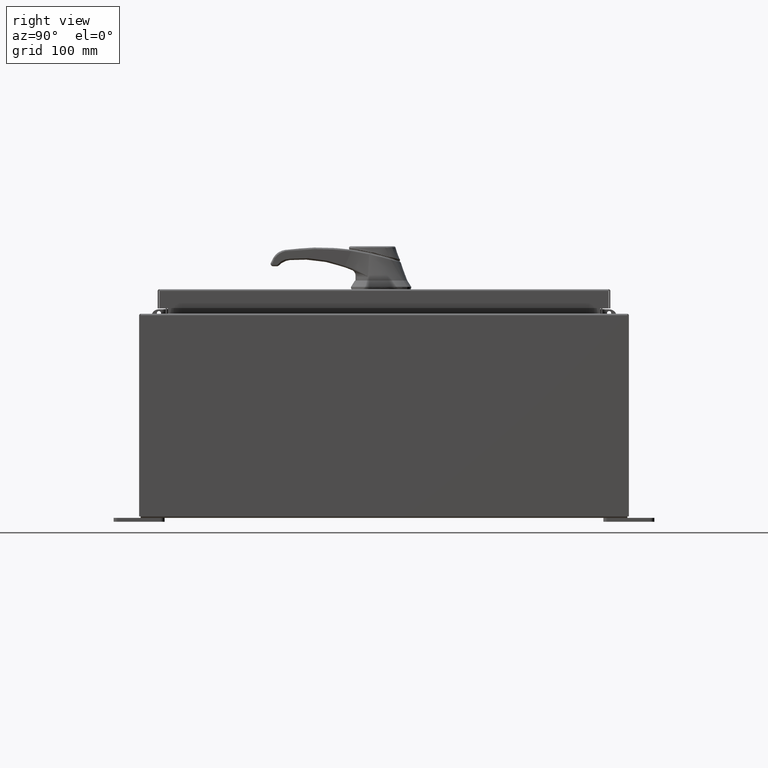
[diagram: clean part render]
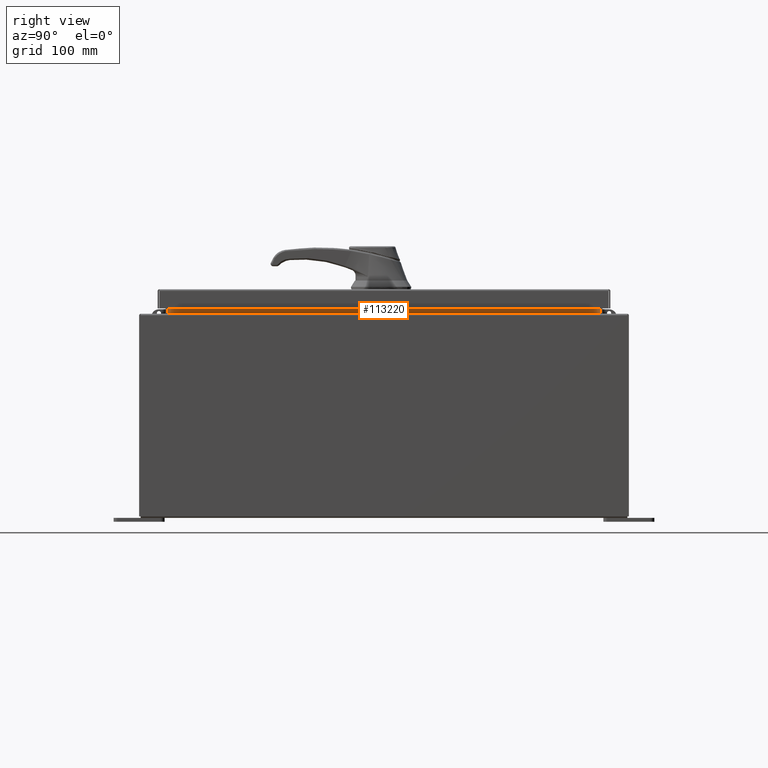
[diagram: same view with one face highlighted and labeled with its STEP entity id]
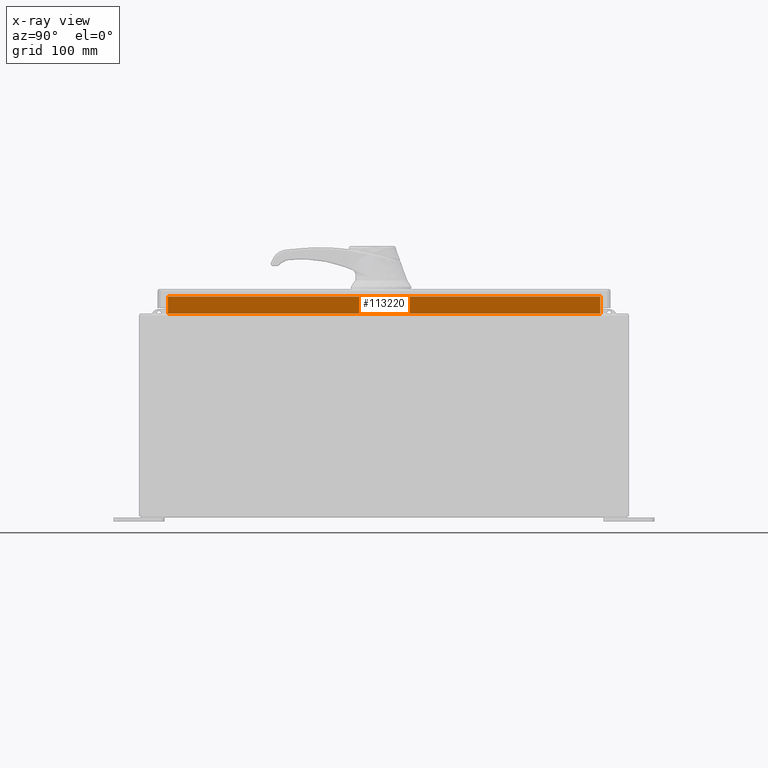
[diagram: x-ray of the same camera — body ghosted, the highlighted face saturated]
A machine part, right view. The second image highlights one B-rep face of the part: STEP entity #113220.
The next image is the same camera in x-ray: the body ghosted, the highlighted face saturated — about 0% of this face is hidden behind the body in this view.
In plain terms, the highlighted planar face has unit normal (1, 0, -0).
Its self-contained STEP definition (entity closure, byte-faithful):
#3698 = VERTEX_POINT ( 'NONE', #12234 ) ;
#3700 = ORIENTED_EDGE ( 'NONE', *, *, #12624, .F. ) ;
#4128 = VECTOR ( 'NONE', #104875, 39.37007874015748100 ) ;
#8401 = LINE ( 'NONE', #68117, #52131 ) ;
#9000 = VECTOR ( 'NONE', #89219, 39.37007874015748100 ) ;
#10972 = EDGE_CURVE ( 'NONE', #110777, #91698, #109243, .T. ) ;
#11629 = CARTESIAN_POINT ( 'NONE',  ( 8.699700000000035500, 10.59374999999999600, 10.76290000000001100 ) ) ;
#12234 = CARTESIAN_POINT ( 'NONE',  ( 8.699700000000035500, -10.59374999999999800, 9.938300000000008800 ) ) ;
#12624 = EDGE_CURVE ( 'NONE', #91698, #77690, #55484, .T. ) ;
#25186 = CARTESIAN_POINT ( 'NONE',  ( 8.699700000000035500, -10.59375000000000000, 10.76290000000001100 ) ) ;
#36706 = CARTESIAN_POINT ( 'NONE',  ( 8.699700000000035500, 10.59374999999999600, 9.925300000000008900 ) ) ;
#42653 = CARTESIAN_POINT ( 'NONE',  ( 8.699700000000035500, 10.59374999999999600, 9.938300000000008800 ) ) ;
#44146 = DIRECTION ( 'NONE',  ( -2.361913319930193300E-015, 0.0000000000000000000, -1.000000000000000000 ) ) ;
#47979 = ORIENTED_EDGE ( 'NONE', *, *, #63230, .F. ) ;
#50645 = LINE ( 'NONE', #96037, #4128 ) ;
#52131 = VECTOR ( 'NONE', #85780, 39.37007874015748100 ) ;
#54214 = EDGE_CURVE ( 'NONE', #77690, #3698, #50645, .T. ) ;
#55484 = LINE ( 'NONE', #36706, #9000 ) ;
#63230 = EDGE_CURVE ( 'NONE', #3698, #110777, #8401, .T. ) ;
#63929 = AXIS2_PLACEMENT_3D ( 'NONE', #69794, #96691, #44146 ) ;
#68117 = CARTESIAN_POINT ( 'NONE',  ( 8.699700000000037300, -10.59375000000000000, 10.85060000000001100 ) ) ;
#68753 = DIRECTION ( 'NONE',  ( 0.0000000000000000000, 1.000000000000000000, 0.0000000000000000000 ) ) ;
#69794 = CARTESIAN_POINT ( 'NONE',  ( 8.699700000000012400, 0.0000000000000000000, -2.054793730939673200E-014 ) ) ;
#70174 = PLANE ( 'NONE',  #63929 ) ;
#71410 = ORIENTED_EDGE ( 'NONE', *, *, #54214, .F. ) ;
#74265 = CARTESIAN_POINT ( 'NONE',  ( 8.699700000000037300, -10.59375000000000000, 10.76290000000001100 ) ) ;
#77690 = VERTEX_POINT ( 'NONE', #42653 ) ;
#78051 = EDGE_LOOP ( 'NONE', ( #3700, #112475, #47979, #71410 ) ) ;
#85780 = DIRECTION ( 'NONE',  ( 2.361913319930198800E-015, -0.0000000000000000000, 1.000000000000000000 ) ) ;
#89219 = DIRECTION ( 'NONE',  ( -2.361913319930193300E-015, -0.0000000000000000000, -1.000000000000000000 ) ) ;
#91698 = VERTEX_POINT ( 'NONE', #11629 ) ;
#96037 = CARTESIAN_POINT ( 'NONE',  ( 8.699700000000035500, 10.59374999999999600, 9.938300000000008800 ) ) ;
#96691 = DIRECTION ( 'NONE',  ( 1.000000000000000000, 0.0000000000000000000, -2.361913319930193300E-015 ) ) ;
#97831 = FACE_OUTER_BOUND ( 'NONE', #78051, .T. ) ;
#104875 = DIRECTION ( 'NONE',  ( 1.031494227696241200E-016, -1.000000000000000000, 1.031494227696241200E-016 ) ) ;
#109243 = LINE ( 'NONE', #25186, #112023 ) ;
#110777 = VERTEX_POINT ( 'NONE', #74265 ) ;
#112023 = VECTOR ( 'NONE', #68753, 39.37007874015748100 ) ;
#112475 = ORIENTED_EDGE ( 'NONE', *, *, #10972, .F. ) ;
#113220 = ADVANCED_FACE ( 'NONE', ( #97831 ), #70174, .T. ) ;